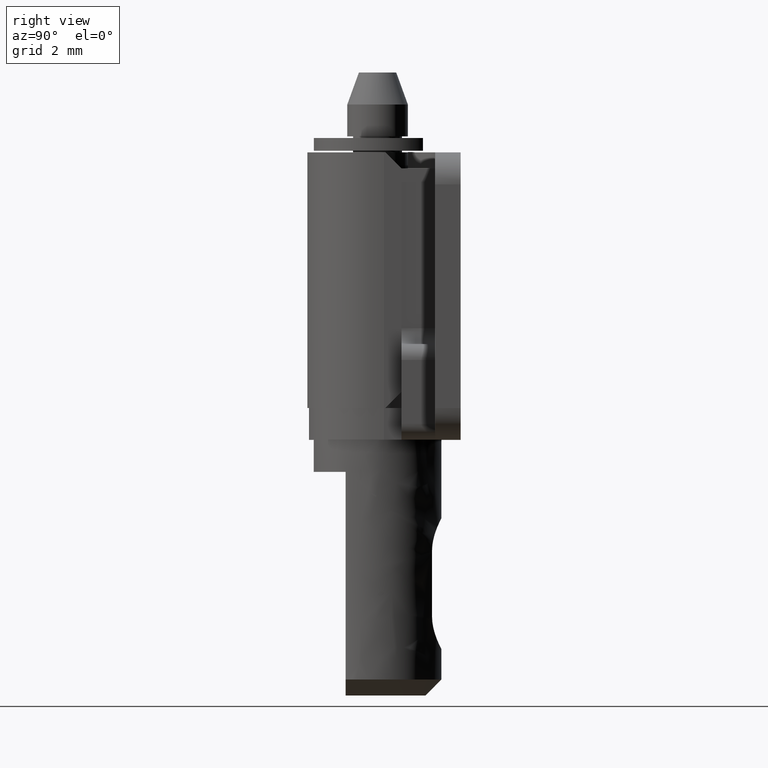
[diagram: clean part render]
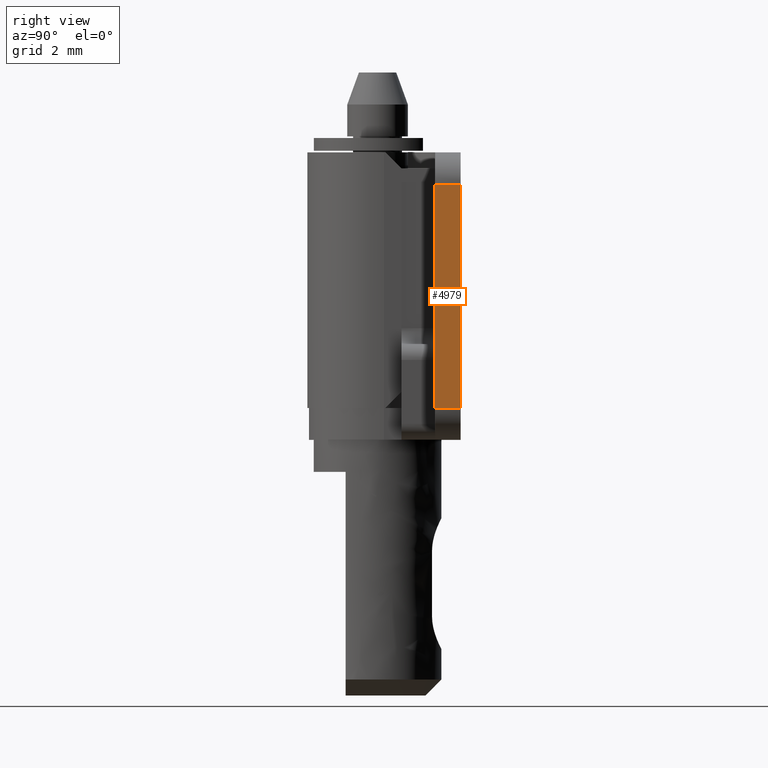
[diagram: same view with one face highlighted and labeled with its STEP entity id]
A machine part, right view. The second image highlights one B-rep face of the part: STEP entity #4979.
In plain terms, the highlighted face is a freeform B-spline surface patch.
Its self-contained STEP definition (entity closure, byte-faithful):
#4515=CARTESIAN_POINT('',(8.600000000000000,1.800000000000000,8.999999999999449));
#4516=VERTEX_POINT('',#4515);
#4530=CARTESIAN_POINT('',(8.600000000000000,1.800000000000000,16.0));
#4531=VERTEX_POINT('',#4530);
#4532=CARTESIAN_POINT('',(8.600000000000000,1.800000000000000,8.999999999999449));
#4533=CARTESIAN_POINT('',(8.600000000000000,1.800000000000000,16.0));
#4534=QUASI_UNIFORM_CURVE('',1,(#4532,#4533),.UNSPECIFIED.,.F.,.U.);
#4535=EDGE_CURVE('',#4516,#4531,#4534,.T.);
#4637=CARTESIAN_POINT('',(8.600000000000000,2.600000000000000,16.0));
#4638=VERTEX_POINT('',#4637);
#4658=CARTESIAN_POINT('',(8.600000000000000,2.600000000000000,16.0));
#4659=CARTESIAN_POINT('',(8.600000000000000,1.800000000000000,16.0));
#4660=QUASI_UNIFORM_CURVE('',1,(#4658,#4659),.UNSPECIFIED.,.F.,.U.);
#4661=EDGE_CURVE('',#4638,#4531,#4660,.T.);
#4680=CARTESIAN_POINT('',(8.600000000000000,2.600000000000000,8.999999999999449));
#4681=VERTEX_POINT('',#4680);
#4697=CARTESIAN_POINT('',(8.600000000000000,1.800000000000000,8.999999999999449));
#4698=CARTESIAN_POINT('',(8.600000000000000,2.600000000000000,8.999999999999449));
#4699=QUASI_UNIFORM_CURVE('',1,(#4697,#4698),.UNSPECIFIED.,.F.,.U.);
#4700=EDGE_CURVE('',#4516,#4681,#4699,.T.);
#4964=CARTESIAN_POINT('',(8.600000000000000,1.760040001550555,8.650350013566779));
#4965=CARTESIAN_POINT('',(8.600000000000000,1.760040001550555,16.349650174187300));
#4966=CARTESIAN_POINT('',(8.600000000000000,2.639960019907118,8.650350013566779));
#4967=CARTESIAN_POINT('',(8.600000000000000,2.639960019907118,16.349650174187300));
#4968=B_SPLINE_SURFACE_WITH_KNOTS('',1,1,((#4964,#4966),(#4965,#4967)),.UNSPECIFIED.,.F.,.F.,.U.,(2,2),(2,2),(0.0,7.699300160620524),(0.041708334948495,0.958291687403247),.UNSPECIFIED.);
#4969=ORIENTED_EDGE('',*,*,#4535,.F.);
#4970=ORIENTED_EDGE('',*,*,#4700,.T.);
#4971=CARTESIAN_POINT('',(8.600000000000000,2.600000000000000,8.999999999999449));
#4972=CARTESIAN_POINT('',(8.600000000000000,2.600000000000000,16.0));
#4973=QUASI_UNIFORM_CURVE('',1,(#4971,#4972),.UNSPECIFIED.,.F.,.U.);
#4974=EDGE_CURVE('',#4681,#4638,#4973,.T.);
#4975=ORIENTED_EDGE('',*,*,#4974,.T.);
#4976=ORIENTED_EDGE('',*,*,#4661,.T.);
#4977=EDGE_LOOP('',(#4969,#4970,#4975,#4976));
#4978=FACE_OUTER_BOUND('',#4977,.T.);
#4979=ADVANCED_FACE('',(#4978),#4968,.F.);